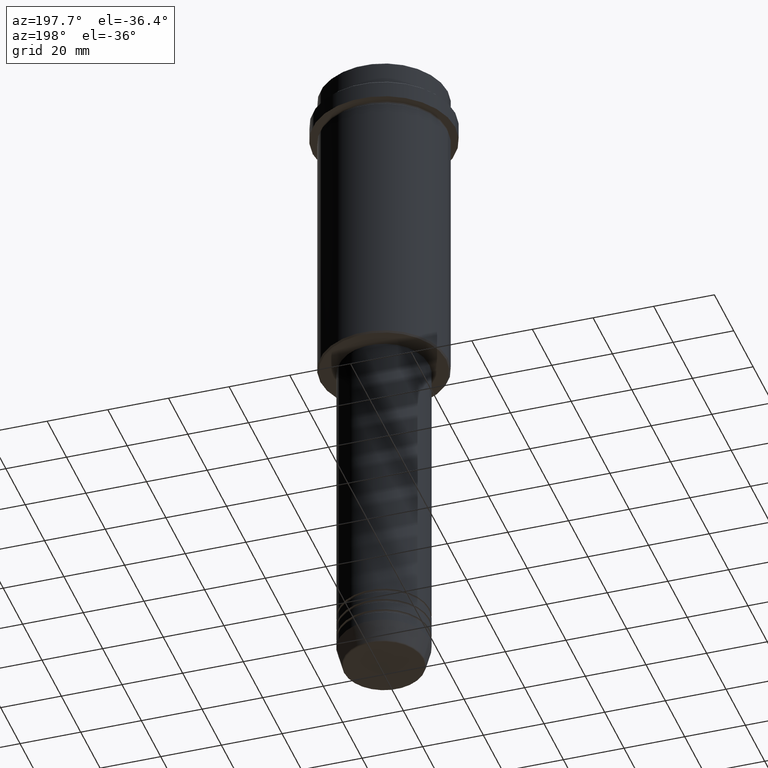
[diagram: clean part render]
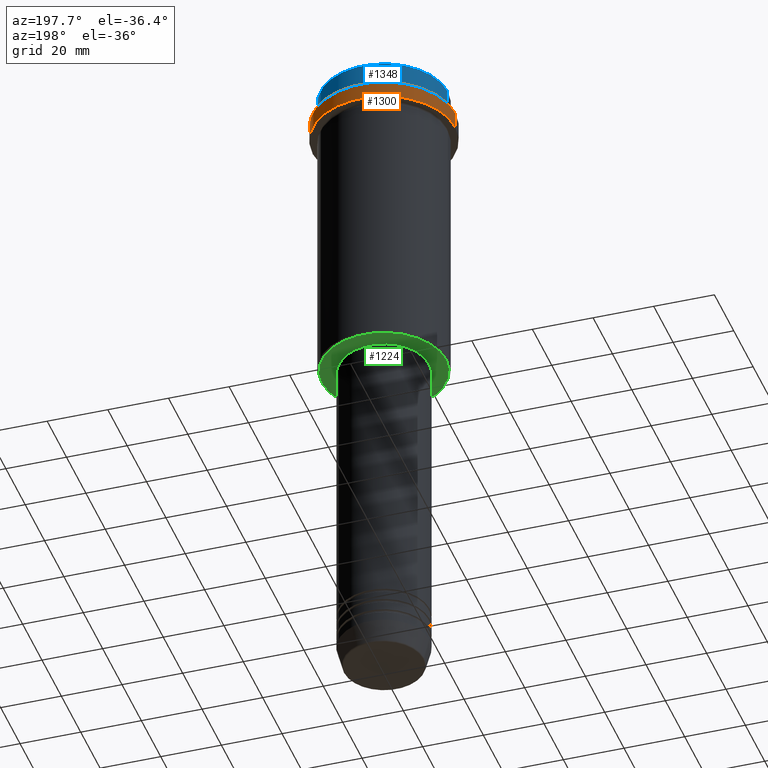
[diagram: same view with three faces highlighted in distinct colors, each labeled with its STEP entity id]
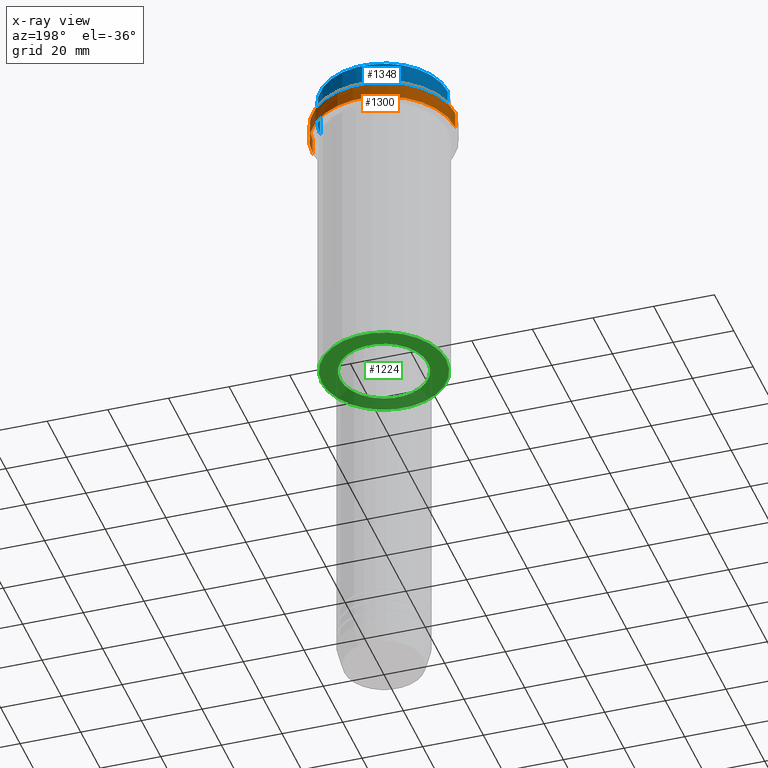
[diagram: x-ray of the same camera — body ghosted, the three highlighted faces saturated]
A machine part, auxiliary view with three faces highlighted in distinct colors.
The next image is the same camera in x-ray (body ghosted, the three faces saturated) — at least one of them is partly hidden behind the body in this view.
Their STEP definitions:

[orange] entity #1300 — the highlighted cylindrical surface (partial cylindrical patch) has radius 23.5 mm, axis along (-0, -0, 1).
#31 = CARTESIAN_POINT ( 'NONE',  ( -23.50000000000000711, 2.877919977996281109E-15, -15.00000000000000000 ) ) ;
#76 = AXIS2_PLACEMENT_3D ( 'NONE', #1308, #357, #765 ) ;
#112 = VERTEX_POINT ( 'NONE', #175 ) ;
#138 = CARTESIAN_POINT ( 'NONE',  ( -23.50000000000000000, 2.877919977996280320E-15, -9.499999999999971578 ) ) ;
#175 = CARTESIAN_POINT ( 'NONE',  ( 23.50000000000000355, 0.000000000000000000, -15.00000000000000000 ) ) ;
#200 = DIRECTION ( 'NONE',  ( -0.000000000000000000, -0.000000000000000000, 1.000000000000000000 ) ) ;
#236 = CIRCLE ( 'NONE', #1408, 23.50000000000000000 ) ;
#299 = DIRECTION ( 'NONE',  ( -0.000000000000000000, -0.000000000000000000, 1.000000000000000000 ) ) ;
#357 = DIRECTION ( 'NONE',  ( -0.000000000000000000, -0.000000000000000000, 1.000000000000000000 ) ) ;
#424 = DIRECTION ( 'NONE',  ( 1.000000000000000000, 0.000000000000000000, 0.000000000000000000 ) ) ;
#560 = EDGE_CURVE ( 'NONE', #112, #1393, #1345, .T. ) ;
#656 = LINE ( 'NONE', #1181, #776 ) ;
#679 = EDGE_CURVE ( 'NONE', #112, #1314, #1356, .T. ) ;
#765 = DIRECTION ( 'NONE',  ( 1.000000000000000000, 0.000000000000000000, 0.000000000000000000 ) ) ;
#776 = VECTOR ( 'NONE', #200, 1000.000000000000000 ) ;
#797 = DIRECTION ( 'NONE',  ( -0.000000000000000000, -0.000000000000000000, 1.000000000000000000 ) ) ;
#833 = ORIENTED_EDGE ( 'NONE', *, *, #1231, .T. ) ;
#871 = ORIENTED_EDGE ( 'NONE', *, *, #679, .F. ) ;
#908 = VERTEX_POINT ( 'NONE', #138 ) ;
#983 = EDGE_CURVE ( 'NONE', #908, #1314, #236, .T. ) ;
#1018 = CARTESIAN_POINT ( 'NONE',  ( 23.50000000000000000, 0.000000000000000000, 0.000000000000000000 ) ) ;
#1039 = VECTOR ( 'NONE', #797, 1000.000000000000000 ) ;
#1047 = DIRECTION ( 'NONE',  ( 1.000000000000000000, 0.000000000000000000, 0.000000000000000000 ) ) ;
#1068 = CARTESIAN_POINT ( 'NONE',  ( 0.000000000000000000, 0.000000000000000000, -9.499999999999971578 ) ) ;
#1129 = AXIS2_PLACEMENT_3D ( 'NONE', #1277, #299, #424 ) ;
#1137 = ORIENTED_EDGE ( 'NONE', *, *, #560, .T. ) ;
#1181 = CARTESIAN_POINT ( 'NONE',  ( -23.50000000000000000, 2.877919977996280320E-15, 0.000000000000000000 ) ) ;
#1207 = CARTESIAN_POINT ( 'NONE',  ( 23.50000000000000000, 0.000000000000000000, -9.499999999999971578 ) ) ;
#1212 = FACE_OUTER_BOUND ( 'NONE', #1355, .T. ) ;
#1231 = EDGE_CURVE ( 'NONE', #1393, #908, #656, .T. ) ;
#1234 = CYLINDRICAL_SURFACE ( 'NONE', #76, 23.50000000000000000 ) ;
#1247 = ORIENTED_EDGE ( 'NONE', *, *, #983, .T. ) ;
#1269 = DIRECTION ( 'NONE',  ( 0.000000000000000000, 0.000000000000000000, -1.000000000000000000 ) ) ;
#1277 = CARTESIAN_POINT ( 'NONE',  ( 0.000000000000000000, 0.000000000000000000, -15.00000000000000000 ) ) ;
#1300 = ADVANCED_FACE ( 'NONE', ( #1212 ), #1234, .T. ) ;
#1308 = CARTESIAN_POINT ( 'NONE',  ( 0.000000000000000000, 0.000000000000000000, 0.000000000000000000 ) ) ;
#1314 = VERTEX_POINT ( 'NONE', #1207 ) ;
#1345 = CIRCLE ( 'NONE', #1129, 23.50000000000000355 ) ;
#1355 = EDGE_LOOP ( 'NONE', ( #1137, #833, #1247, #871 ) ) ;
#1356 = LINE ( 'NONE', #1018, #1039 ) ;
#1393 = VERTEX_POINT ( 'NONE', #31 ) ;
#1408 = AXIS2_PLACEMENT_3D ( 'NONE', #1068, #1269, #1047 ) ;

[blue] entity #1348 — the highlighted cylindrical surface (partial cylindrical patch) has radius 21 mm, axis along (-0, -0, 1).
#117 = VERTEX_POINT ( 'NONE', #1376 ) ;
#155 = DIRECTION ( 'NONE',  ( 0.000000000000000000, 0.000000000000000000, -1.000000000000000000 ) ) ;
#180 = CARTESIAN_POINT ( 'NONE',  ( -21.00000000000000000, 2.571758278209441661E-15, 0.000000000000000000 ) ) ;
#244 = DIRECTION ( 'NONE',  ( 1.000000000000000000, 0.000000000000000000, 0.000000000000000000 ) ) ;
#273 = CARTESIAN_POINT ( 'NONE',  ( 0.000000000000000000, 0.000000000000000000, -0.5000000000000108802 ) ) ;
#282 = VECTOR ( 'NONE', #699, 1000.000000000000000 ) ;
#343 = EDGE_CURVE ( 'NONE', #1202, #117, #1386, .T. ) ;
#345 = CARTESIAN_POINT ( 'NONE',  ( 0.000000000000000000, 0.000000000000000000, 0.000000000000000000 ) ) ;
#392 = LINE ( 'NONE', #609, #1066 ) ;
#393 = DIRECTION ( 'NONE',  ( 1.000000000000000000, 0.000000000000000000, 0.000000000000000000 ) ) ;
#423 = AXIS2_PLACEMENT_3D ( 'NONE', #273, #155, #393 ) ;
#427 = AXIS2_PLACEMENT_3D ( 'NONE', #345, #689, #789 ) ;
#465 = CARTESIAN_POINT ( 'NONE',  ( 0.000000000000000000, 0.000000000000000000, -7.999999999999998224 ) ) ;
#530 = CARTESIAN_POINT ( 'NONE',  ( 21.00000000000000000, 0.000000000000000000, -0.5000000000000108802 ) ) ;
#534 = EDGE_LOOP ( 'NONE', ( #1169, #909, #1100, #952 ) ) ;
#542 = CARTESIAN_POINT ( 'NONE',  ( 21.00000000000000000, 0.000000000000000000, -7.999999999999998224 ) ) ;
#589 = DIRECTION ( 'NONE',  ( -0.000000000000000000, -0.000000000000000000, 1.000000000000000000 ) ) ;
#609 = CARTESIAN_POINT ( 'NONE',  ( 21.00000000000000000, 0.000000000000000000, 0.000000000000000000 ) ) ;
#689 = DIRECTION ( 'NONE',  ( -0.000000000000000000, -0.000000000000000000, 1.000000000000000000 ) ) ;
#699 = DIRECTION ( 'NONE',  ( -0.000000000000000000, -0.000000000000000000, 1.000000000000000000 ) ) ;
#727 = EDGE_CURVE ( 'NONE', #858, #1261, #1195, .T. ) ;
#789 = DIRECTION ( 'NONE',  ( 1.000000000000000000, 0.000000000000000000, 0.000000000000000000 ) ) ;
#858 = VERTEX_POINT ( 'NONE', #1329 ) ;
#909 = ORIENTED_EDGE ( 'NONE', *, *, #1033, .T. ) ;
#952 = ORIENTED_EDGE ( 'NONE', *, *, #1415, .F. ) ;
#1033 = EDGE_CURVE ( 'NONE', #117, #858, #1059, .T. ) ;
#1059 = LINE ( 'NONE', #180, #282 ) ;
#1066 = VECTOR ( 'NONE', #589, 1000.000000000000000 ) ;
#1100 = ORIENTED_EDGE ( 'NONE', *, *, #727, .T. ) ;
#1124 = CYLINDRICAL_SURFACE ( 'NONE', #427, 21.00000000000000000 ) ;
#1169 = ORIENTED_EDGE ( 'NONE', *, *, #343, .T. ) ;
#1195 = CIRCLE ( 'NONE', #423, 21.00000000000000000 ) ;
#1202 = VERTEX_POINT ( 'NONE', #542 ) ;
#1232 = AXIS2_PLACEMENT_3D ( 'NONE', #465, #1331, #244 ) ;
#1261 = VERTEX_POINT ( 'NONE', #530 ) ;
#1320 = FACE_OUTER_BOUND ( 'NONE', #534, .T. ) ;
#1329 = CARTESIAN_POINT ( 'NONE',  ( -21.00000000000000000, 2.571758278209441661E-15, -0.5000000000000108802 ) ) ;
#1331 = DIRECTION ( 'NONE',  ( -0.000000000000000000, -0.000000000000000000, 1.000000000000000000 ) ) ;
#1348 = ADVANCED_FACE ( 'NONE', ( #1320 ), #1124, .T. ) ;
#1376 = CARTESIAN_POINT ( 'NONE',  ( -21.00000000000000000, 2.571758278209441661E-15, -7.999999999999998224 ) ) ;
#1386 = CIRCLE ( 'NONE', #1232, 21.00000000000000000 ) ;
#1415 = EDGE_CURVE ( 'NONE', #1202, #1261, #392, .T. ) ;

[green] entity #1224 — the highlighted planar face has unit normal (0, 0, -1).
#39 = CIRCLE ( 'NONE', #323, 20.49999999999998934 ) ;
#84 = DIRECTION ( 'NONE',  ( -0.000000000000000000, -0.000000000000000000, 1.000000000000000000 ) ) ;
#113 = DIRECTION ( 'NONE',  ( -1.000000000000000000, 0.000000000000000000, 0.000000000000000000 ) ) ;
#116 = DIRECTION ( 'NONE',  ( -1.000000000000000000, 0.000000000000000000, 0.000000000000000000 ) ) ;
#120 = AXIS2_PLACEMENT_3D ( 'NONE', #318, #634, #113 ) ;
#225 = DIRECTION ( 'NONE',  ( 0.000000000000000000, 0.000000000000000000, -1.000000000000000000 ) ) ;
#242 = CARTESIAN_POINT ( 'NONE',  ( -20.49999999999998934, 2.541142108230757480E-15, -105.0000000000000284 ) ) ;
#286 = VERTEX_POINT ( 'NONE', #1119 ) ;
#312 = CARTESIAN_POINT ( 'NONE',  ( 0.000000000000000000, 0.000000000000000000, -105.0000000000000284 ) ) ;
#318 = CARTESIAN_POINT ( 'NONE',  ( 0.000000000000000000, 0.000000000000000000, -105.0000000000000284 ) ) ;
#320 = EDGE_CURVE ( 'NONE', #1372, #935, #39, .T. ) ;
#323 = AXIS2_PLACEMENT_3D ( 'NONE', #344, #458, #116 ) ;
#331 = ORIENTED_EDGE ( 'NONE', *, *, #320, .T. ) ;
#335 = FACE_OUTER_BOUND ( 'NONE', #1084, .T. ) ;
#344 = CARTESIAN_POINT ( 'NONE',  ( 0.000000000000000000, 0.000000000000000000, -105.0000000000000284 ) ) ;
#363 = ORIENTED_EDGE ( 'NONE', *, *, #1317, .T. ) ;
#415 = PLANE ( 'NONE',  #597 ) ;
#458 = DIRECTION ( 'NONE',  ( 0.000000000000000000, 0.000000000000000000, -1.000000000000000000 ) ) ;
#496 = ORIENTED_EDGE ( 'NONE', *, *, #1150, .T. ) ;
#508 = DIRECTION ( 'NONE',  ( 1.000000000000000000, 0.000000000000000000, 0.000000000000000000 ) ) ;
#554 = DIRECTION ( 'NONE',  ( 1.000000000000000000, 0.000000000000000000, 0.000000000000000000 ) ) ;
#597 = AXIS2_PLACEMENT_3D ( 'NONE', #1204, #225, #1392 ) ;
#601 = CARTESIAN_POINT ( 'NONE',  ( 20.49999999999998934, 0.000000000000000000, -105.0000000000000284 ) ) ;
#626 = EDGE_CURVE ( 'NONE', #286, #979, #1064, .T. ) ;
#634 = DIRECTION ( 'NONE',  ( 0.000000000000000000, 0.000000000000000000, -1.000000000000000000 ) ) ;
#648 = ORIENTED_EDGE ( 'NONE', *, *, #626, .T. ) ;
#761 = FACE_BOUND ( 'NONE', #1299, .T. ) ;
#935 = VERTEX_POINT ( 'NONE', #601 ) ;
#979 = VERTEX_POINT ( 'NONE', #1157 ) ;
#990 = CARTESIAN_POINT ( 'NONE',  ( 0.000000000000000000, 0.000000000000000000, -105.0000000000000284 ) ) ;
#1011 = CIRCLE ( 'NONE', #120, 20.49999999999998934 ) ;
#1064 = CIRCLE ( 'NONE', #1254, 14.49999999999999467 ) ;
#1084 = EDGE_LOOP ( 'NONE', ( #496, #331 ) ) ;
#1104 = DIRECTION ( 'NONE',  ( -0.000000000000000000, -0.000000000000000000, 1.000000000000000000 ) ) ;
#1119 = CARTESIAN_POINT ( 'NONE',  ( 14.49999999999999467, 0.000000000000000000, -105.0000000000000284 ) ) ;
#1150 = EDGE_CURVE ( 'NONE', #935, #1372, #1011, .T. ) ;
#1157 = CARTESIAN_POINT ( 'NONE',  ( -14.49999999999999467, 1.775737858763661620E-15, -105.0000000000000284 ) ) ;
#1204 = CARTESIAN_POINT ( 'NONE',  ( 0.000000000000000000, 21.00000000000000000, -105.0000000000000284 ) ) ;
#1215 = AXIS2_PLACEMENT_3D ( 'NONE', #990, #1104, #554 ) ;
#1224 = ADVANCED_FACE ( 'NONE', ( #335, #761 ), #415, .T. ) ;
#1254 = AXIS2_PLACEMENT_3D ( 'NONE', #312, #84, #508 ) ;
#1299 = EDGE_LOOP ( 'NONE', ( #648, #363 ) ) ;
#1317 = EDGE_CURVE ( 'NONE', #979, #286, #1410, .T. ) ;
#1372 = VERTEX_POINT ( 'NONE', #242 ) ;
#1392 = DIRECTION ( 'NONE',  ( -1.000000000000000000, 0.000000000000000000, -0.000000000000000000 ) ) ;
#1410 = CIRCLE ( 'NONE', #1215, 14.49999999999999467 ) ;